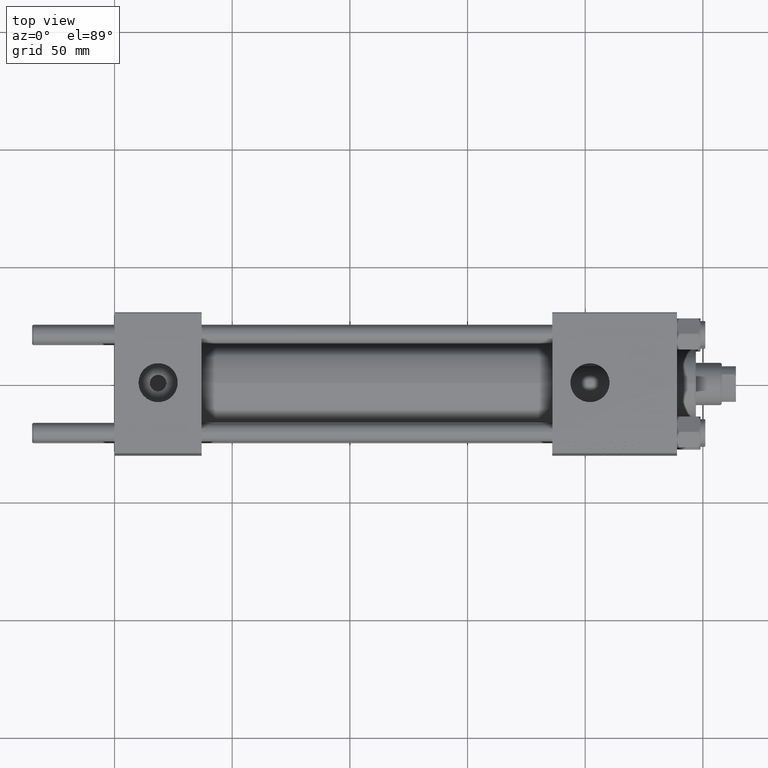
[diagram: clean part render]
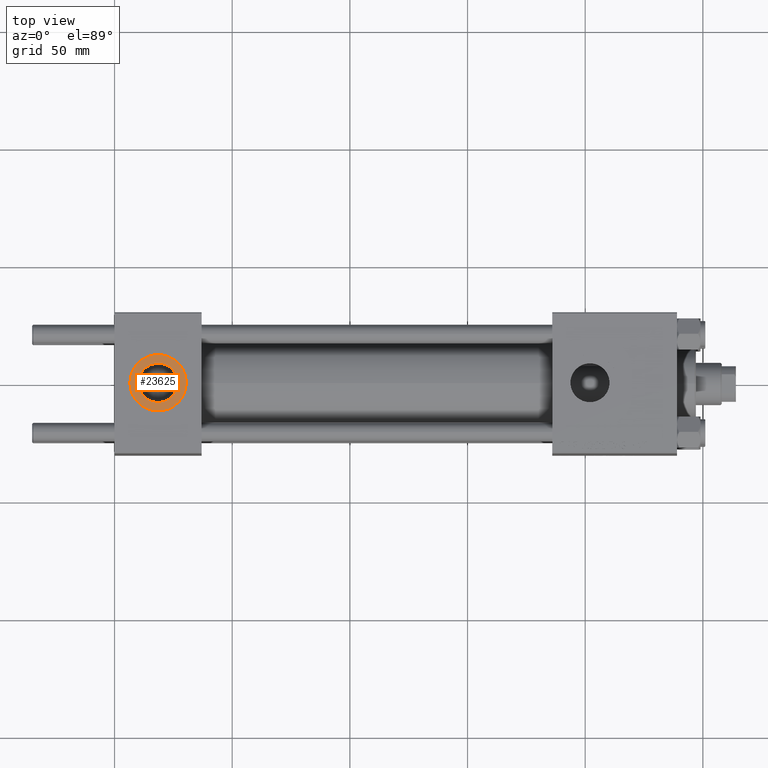
[diagram: same view with one face highlighted and labeled with its STEP entity id]
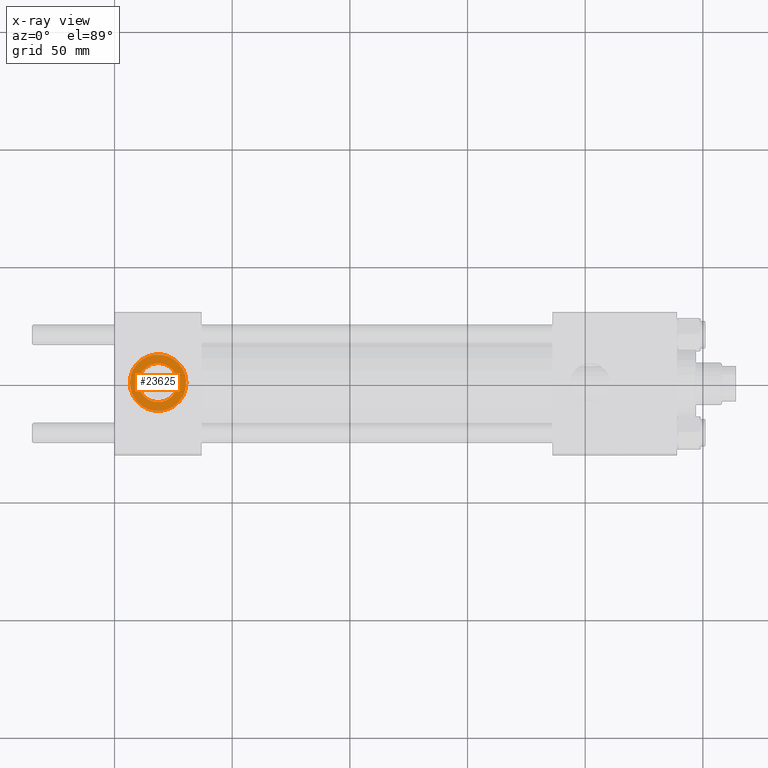
[diagram: x-ray of the same camera — body ghosted, the highlighted face saturated]
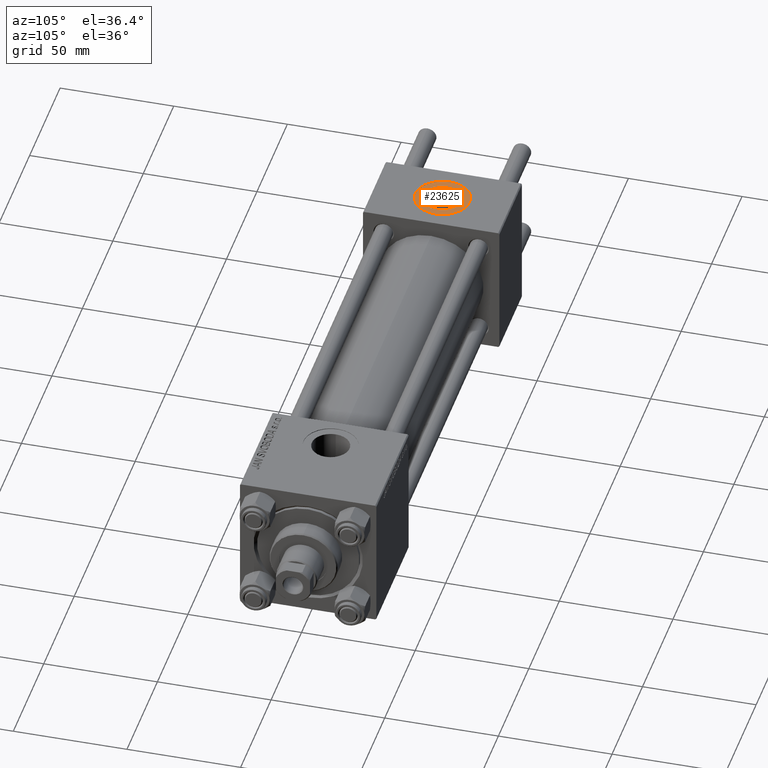
[diagram: same view with one face highlighted and labeled with its STEP entity id]
A machine part, top view. The second image highlights one B-rep face of the part: STEP entity #23625.
The next image is the same camera in x-ray: the body ghosted, the highlighted face saturated — about 0% of this face is hidden behind the body in this view.
A second angle (auxiliary view) of the same face is appended — the face is thin or edge-on in the first view.
In plain terms, the highlighted planar face has unit normal (0, 0, 1).
Its self-contained STEP definition (entity closure, byte-faithful):
#220 = DIRECTION ( 'NONE',  ( 0.000000000000000000, 0.000000000000000000, 1.000000000000000000 ) ) ;
#1597 = DIRECTION ( 'NONE',  ( 0.000000000000000000, 0.000000000000000000, 1.000000000000000000 ) ) ;
#1727 = DIRECTION ( 'NONE',  ( 0.000000000000000000, 0.000000000000000000, 1.000000000000000000 ) ) ;
#1864 = CARTESIAN_POINT ( 'NONE',  ( 30.50000000000000000, -3.469446951953614978E-15, 29.79999999999999716 ) ) ;
#2127 = CARTESIAN_POINT ( 'NONE',  ( 10.16999999999999638, -2.449316168263869821E-15, 29.79999999999999716 ) ) ;
#5377 = CIRCLE ( 'NONE', #9354, 8.330000000000000071 ) ;
#6572 = CARTESIAN_POINT ( 'NONE',  ( 26.82999999999999829, -3.469446951953614978E-15, 29.79999999999999716 ) ) ;
#8301 = VERTEX_POINT ( 'NONE', #2127 ) ;
#9342 = EDGE_CURVE ( 'NONE', #19413, #42143, #9707, .T. ) ;
#9354 = AXIS2_PLACEMENT_3D ( 'NONE', #30730, #220, #19372 ) ;
#9707 = CIRCLE ( 'NONE', #24244, 12.00000000000000000 ) ;
#11050 = AXIS2_PLACEMENT_3D ( 'NONE', #24390, #28424, #36488 ) ;
#13053 = CARTESIAN_POINT ( 'NONE',  ( 18.50000000000000000, -3.469446951953614978E-15, 29.79999999999999716 ) ) ;
#16138 = EDGE_CURVE ( 'NONE', #8301, #44668, #5377, .T. ) ;
#16576 = DIRECTION ( 'NONE',  ( 1.000000000000000000, 0.000000000000000000, -0.000000000000000000 ) ) ;
#16953 = EDGE_LOOP ( 'NONE', ( #35052, #21331 ) ) ;
#16997 = ORIENTED_EDGE ( 'NONE', *, *, #9342, .T. ) ;
#17377 = ORIENTED_EDGE ( 'NONE', *, *, #42733, .T. ) ;
#17451 = EDGE_CURVE ( 'NONE', #44668, #8301, #19069, .T. ) ;
#19069 = CIRCLE ( 'NONE', #30351, 8.330000000000000071 ) ;
#19372 = DIRECTION ( 'NONE',  ( 1.000000000000000000, 0.000000000000000000, 0.000000000000000000 ) ) ;
#19413 = VERTEX_POINT ( 'NONE', #23548 ) ;
#20925 = EDGE_LOOP ( 'NONE', ( #17377, #16997 ) ) ;
#21331 = ORIENTED_EDGE ( 'NONE', *, *, #16138, .F. ) ;
#23548 = CARTESIAN_POINT ( 'NONE',  ( 6.499999999999997335, -1.999870792976790833E-15, 29.79999999999999716 ) ) ;
#23625 = ADVANCED_FACE ( 'NONE', ( #35531, #47631 ), #36519, .T. ) ;
#24244 = AXIS2_PLACEMENT_3D ( 'NONE', #40428, #1597, #32361 ) ;
#24390 = CARTESIAN_POINT ( 'NONE',  ( 18.50000000000000000, -3.469446951953614978E-15, 29.79999999999999716 ) ) ;
#27211 = AXIS2_PLACEMENT_3D ( 'NONE', #13053, #1727, #16576 ) ;
#28424 = DIRECTION ( 'NONE',  ( 0.000000000000000000, 0.000000000000000000, 1.000000000000000000 ) ) ;
#28634 = DIRECTION ( 'NONE',  ( 1.000000000000000000, 0.000000000000000000, 0.000000000000000000 ) ) ;
#30351 = AXIS2_PLACEMENT_3D ( 'NONE', #31923, #43539, #28634 ) ;
#30730 = CARTESIAN_POINT ( 'NONE',  ( 18.50000000000000000, -3.469446951953614978E-15, 29.79999999999999716 ) ) ;
#31923 = CARTESIAN_POINT ( 'NONE',  ( 18.50000000000000000, -3.469446951953614978E-15, 29.79999999999999716 ) ) ;
#32361 = DIRECTION ( 'NONE',  ( 1.000000000000000000, 0.000000000000000000, 0.000000000000000000 ) ) ;
#32816 = CIRCLE ( 'NONE', #11050, 12.00000000000000000 ) ;
#35052 = ORIENTED_EDGE ( 'NONE', *, *, #17451, .F. ) ;
#35531 = FACE_BOUND ( 'NONE', #16953, .T. ) ;
#36488 = DIRECTION ( 'NONE',  ( 1.000000000000000000, 0.000000000000000000, 0.000000000000000000 ) ) ;
#36519 = PLANE ( 'NONE',  #27211 ) ;
#40428 = CARTESIAN_POINT ( 'NONE',  ( 18.50000000000000000, -3.469446951953614978E-15, 29.79999999999999716 ) ) ;
#42143 = VERTEX_POINT ( 'NONE', #1864 ) ;
#42733 = EDGE_CURVE ( 'NONE', #42143, #19413, #32816, .T. ) ;
#43539 = DIRECTION ( 'NONE',  ( 0.000000000000000000, 0.000000000000000000, 1.000000000000000000 ) ) ;
#44668 = VERTEX_POINT ( 'NONE', #6572 ) ;
#47631 = FACE_OUTER_BOUND ( 'NONE', #20925, .T. ) ;